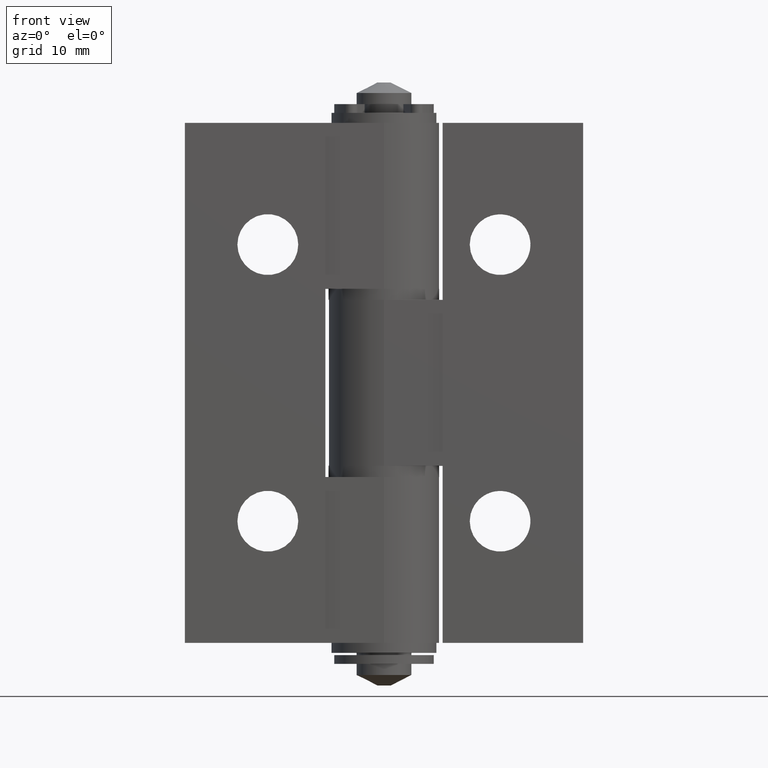
[diagram: clean part render]
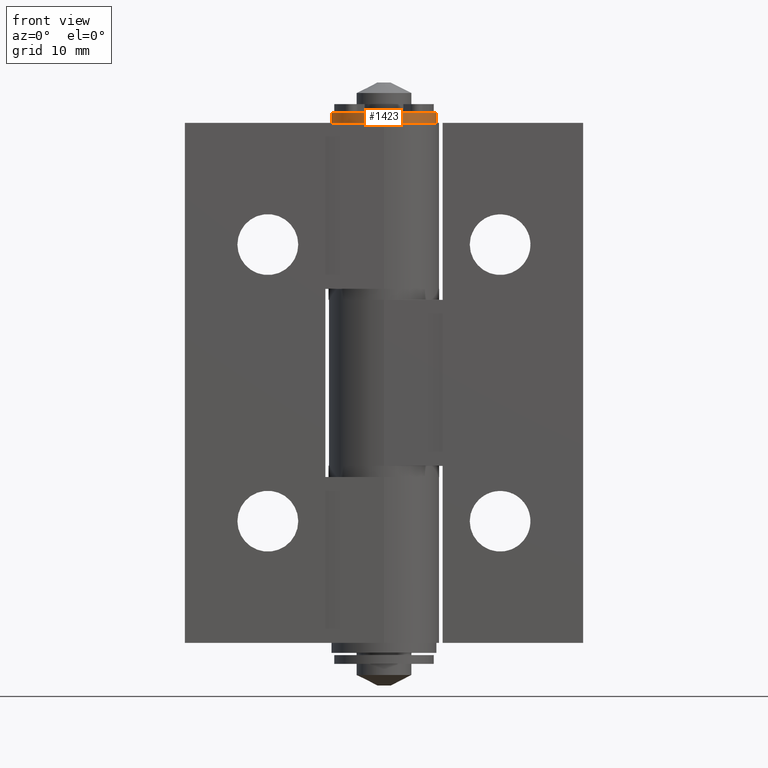
[diagram: same view with one face highlighted and labeled with its STEP entity id]
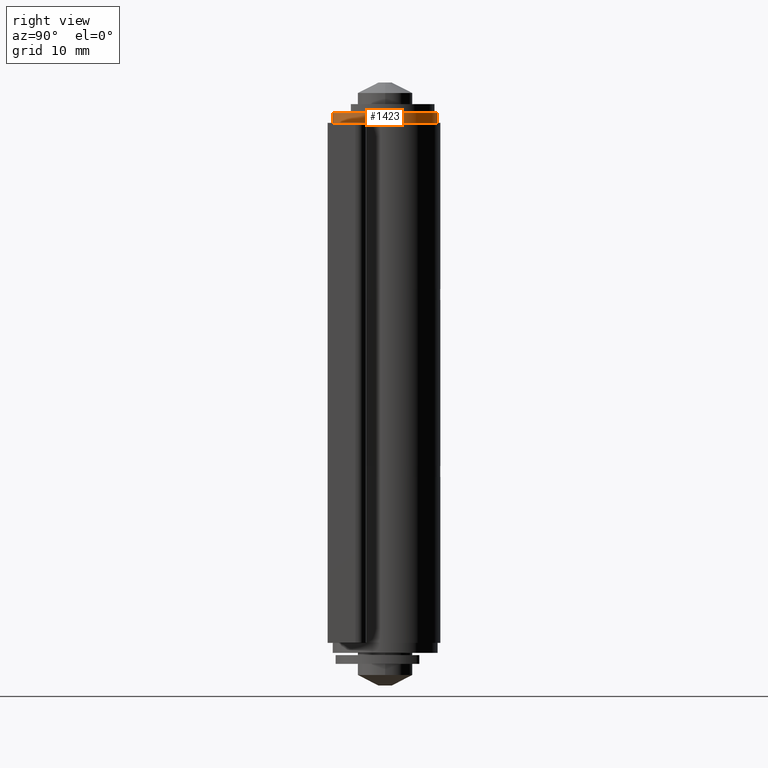
[diagram: same view with one face highlighted and labeled with its STEP entity id]
A machine part, front view. The second image highlights one B-rep face of the part: STEP entity #1423.
A second angle (right view) of the same face is appended — the face is thin or edge-on in the first view.
In plain terms, the highlighted cylindrical surface (partial cylindrical patch) has radius 4.75 mm, axis along (0, -0, -1).
Its self-contained STEP definition (entity closure, byte-faithful):
#106=CYLINDRICAL_SURFACE('',#1569,4.75);
#206=FACE_OUTER_BOUND('',#313,.T.);
#313=EDGE_LOOP('',(#1229,#1230,#1231,#1232));
#405=CIRCLE('',#1570,4.75);
#406=CIRCLE('',#1571,4.75);
#511=LINE('',#2390,#617);
#512=LINE('',#2394,#618);
#617=VECTOR('',#1940,0.900000000000001);
#618=VECTOR('',#1943,0.900000000000001);
#737=VERTEX_POINT('',#2388);
#738=VERTEX_POINT('',#2389);
#739=VERTEX_POINT('',#2391);
#740=VERTEX_POINT('',#2393);
#909=EDGE_CURVE('',#737,#738,#511,.T.);
#910=EDGE_CURVE('',#737,#739,#405,.T.);
#911=EDGE_CURVE('',#740,#739,#512,.T.);
#912=EDGE_CURVE('',#738,#740,#406,.T.);
#1229=ORIENTED_EDGE('',*,*,#909,.F.);
#1230=ORIENTED_EDGE('',*,*,#910,.T.);
#1231=ORIENTED_EDGE('',*,*,#911,.F.);
#1232=ORIENTED_EDGE('',*,*,#912,.F.);
#1423=ADVANCED_FACE('',(#206),#106,.T.);
#1569=AXIS2_PLACEMENT_3D('',#2387,#1938,#1939);
#1570=AXIS2_PLACEMENT_3D('',#2392,#1941,#1942);
#1571=AXIS2_PLACEMENT_3D('',#2395,#1944,#1945);
#1938=DIRECTION('center_axis',(0.,-1.,0.));
#1939=DIRECTION('ref_axis',(0.999390827019096,0.,-0.0348994967025011));
#1940=DIRECTION('',(6.16790569236198E-16,-1.,0.));
#1941=DIRECTION('center_axis',(0.,-1.,0.));
#1942=DIRECTION('ref_axis',(-1.,0.,-1.46407373836513E-15));
#1943=DIRECTION('',(-6.15288098409324E-16,1.,4.30251351485491E-17));
#1944=DIRECTION('center_axis',(-7.30632425388073E-18,-1.,-4.18579036166712E-16));
#1945=DIRECTION('ref_axis',(-1.,7.30632425388064E-18,2.12236733571359E-16));
#2387=CARTESIAN_POINT('Origin',(0.,-0.450000000000001,0.));
#2388=CARTESIAN_POINT('',(-4.75,-5.55111512312578E-16,0.));
#2389=CARTESIAN_POINT('',(-4.75,-0.900000000000001,0.));
#2390=CARTESIAN_POINT('',(-4.75,-5.55111512312578E-16,0.));
#2391=CARTESIAN_POINT('',(-4.73842923873417,-5.55111512312578E-16,0.331343250284597));
#2392=CARTESIAN_POINT('Origin',(0.,-5.55111512312578E-16,6.95435025723439E-15));
#2393=CARTESIAN_POINT('',(-4.73842923873416,-0.900000000000001,0.331343250284597));
#2394=CARTESIAN_POINT('',(-4.73842923873417,-5.55111512312578E-16,0.331343250284597));
#2395=CARTESIAN_POINT('Origin',(0.,-0.900000000000001,-1.00812448446395E-15));